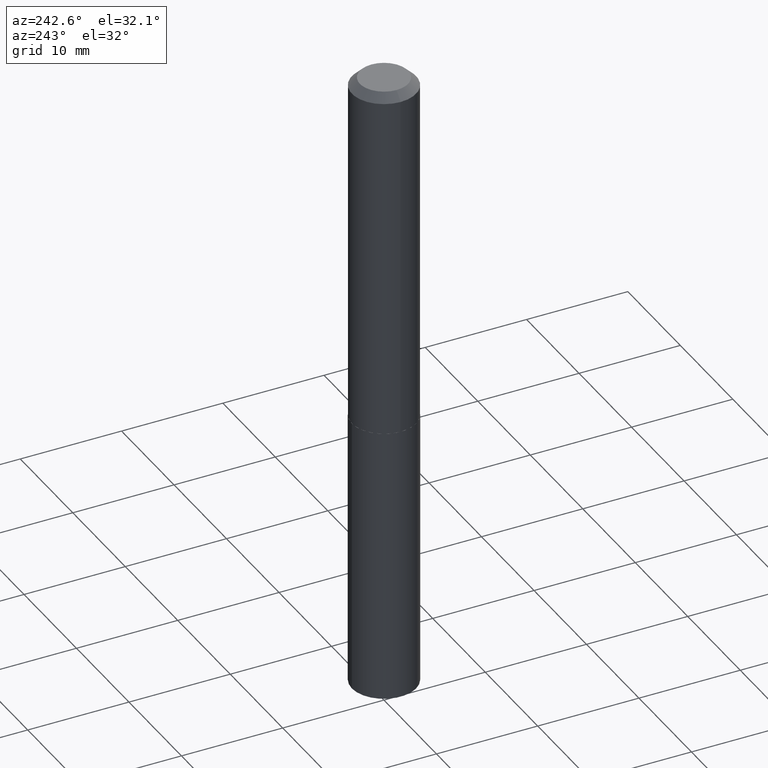
[diagram: clean part render]
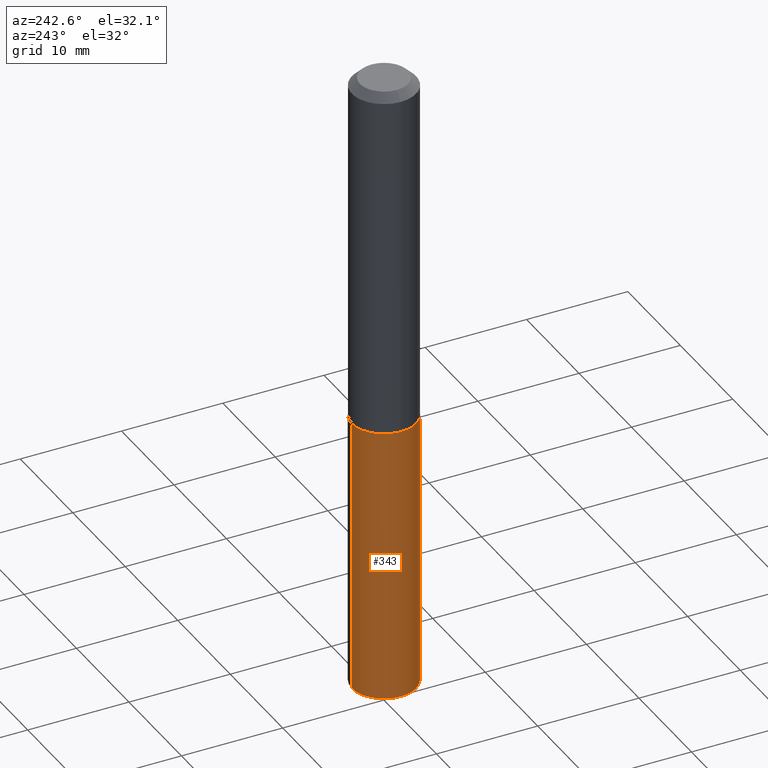
[diagram: same view with one face highlighted and labeled with its STEP entity id]
A machine part, auxiliary view. The second image highlights one B-rep face of the part: STEP entity #343.
In plain terms, the highlighted cylindrical surface (edge-blend (fillet) strip) has radius 3.175 mm, axis along (-0, 0, 1).
Its self-contained STEP definition (entity closure, byte-faithful):
#18 = CARTESIAN_POINT ( 'NONE',  ( 8.881784197001587589E-16, 0.1249999999999951983, -1.375000000000000444 ) ) ;
#27 = LINE ( 'NONE', #197, #36 ) ;
#36 = VECTOR ( 'NONE', #291, 39.37007874015748143 ) ;
#44 = EDGE_CURVE ( 'NONE', #136, #95, #190, .T. ) ;
#47 = CIRCLE ( 'NONE', #166, 0.1250000000000000000 ) ;
#57 = VERTEX_POINT ( 'NONE', #352 ) ;
#68 = EDGE_CURVE ( 'NONE', #270, #57, #27, .T. ) ;
#73 = ORIENTED_EDGE ( 'NONE', *, *, #44, .F. ) ;
#92 = DIRECTION ( 'NONE',  ( -2.445437048854277462E-29, 3.491526817148451177E-15, 1.000000000000000000 ) ) ;
#93 = DIRECTION ( 'NONE',  ( -6.982962677686265922E-15, -1.000000000000000000, 4.370956789862821150E-15 ) ) ;
#95 = VERTEX_POINT ( 'NONE', #149 ) ;
#110 = EDGE_CURVE ( 'NONE', #95, #57, #114, .T. ) ;
#112 = ORIENTED_EDGE ( 'NONE', *, *, #68, .T. ) ;
#114 = CIRCLE ( 'NONE', #390, 0.1250000000000000000 ) ;
#123 = FACE_OUTER_BOUND ( 'NONE', #151, .T. ) ;
#125 = AXIS2_PLACEMENT_3D ( 'NONE', #179, #371, #93 ) ;
#136 = VERTEX_POINT ( 'NONE', #283 ) ;
#149 = CARTESIAN_POINT ( 'NONE',  ( 8.881784197001853830E-16, 0.1249999999999951983, -1.375000000000000444 ) ) ;
#151 = EDGE_LOOP ( 'NONE', ( #73, #358, #112, #268 ) ) ;
#166 = AXIS2_PLACEMENT_3D ( 'NONE', #224, #253, #381 ) ;
#172 = EDGE_CURVE ( 'NONE', #136, #270, #47, .T. ) ;
#179 = CARTESIAN_POINT ( 'NONE',  ( 3.362519608504562260E-29, -4.800786840909324930E-15, -1.375000000000000000 ) ) ;
#190 = LINE ( 'NONE', #18, #219 ) ;
#195 = DIRECTION ( 'NONE',  ( -2.445437048854277742E-29, 3.491526817148451177E-15, 1.000000000000000000 ) ) ;
#197 = CARTESIAN_POINT ( 'NONE',  ( -8.728703347107496150E-16, -0.1250000000000048017, -1.374999999999999334 ) ) ;
#214 = DIRECTION ( 'NONE',  ( -6.982962677686265922E-15, -1.000000000000000000, 4.370956789862821150E-15 ) ) ;
#219 = VECTOR ( 'NONE', #195, 39.37007874015748143 ) ;
#224 = CARTESIAN_POINT ( 'NONE',  ( 6.002378001521283483E-29, -8.569903031003303403E-15, -2.454503720716725290 ) ) ;
#241 = CARTESIAN_POINT ( 'NONE',  ( 3.362519608504562260E-29, -4.800786840909324930E-15, -1.375000000000000000 ) ) ;
#247 = CYLINDRICAL_SURFACE ( 'NONE', #125, 0.1250000000000000000 ) ;
#253 = DIRECTION ( 'NONE',  ( -2.445437048854277462E-29, 3.491526817148451177E-15, 1.000000000000000000 ) ) ;
#268 = ORIENTED_EDGE ( 'NONE', *, *, #110, .F. ) ;
#270 = VERTEX_POINT ( 'NONE', #346 ) ;
#283 = CARTESIAN_POINT ( 'NONE',  ( 8.881784197001849886E-16, 0.1249999999999914235, -2.454503720716725734 ) ) ;
#291 = DIRECTION ( 'NONE',  ( -2.445437048854277742E-29, 3.491526817148451177E-15, 1.000000000000000000 ) ) ;
#343 = ADVANCED_FACE ( 'NONE', ( #123 ), #247, .T. ) ;
#346 = CARTESIAN_POINT ( 'NONE',  ( -8.728703347107231882E-16, -0.1250000000000085487, -2.454503720716724846 ) ) ;
#352 = CARTESIAN_POINT ( 'NONE',  ( -8.728703347107496150E-16, -0.1250000000000048017, -1.374999999999999334 ) ) ;
#358 = ORIENTED_EDGE ( 'NONE', *, *, #172, .T. ) ;
#371 = DIRECTION ( 'NONE',  ( -2.445437048854277462E-29, 3.491526817148451177E-15, 1.000000000000000000 ) ) ;
#381 = DIRECTION ( 'NONE',  ( -6.982962677686265922E-15, -1.000000000000000000, 4.370956789862821150E-15 ) ) ;
#390 = AXIS2_PLACEMENT_3D ( 'NONE', #241, #92, #214 ) ;